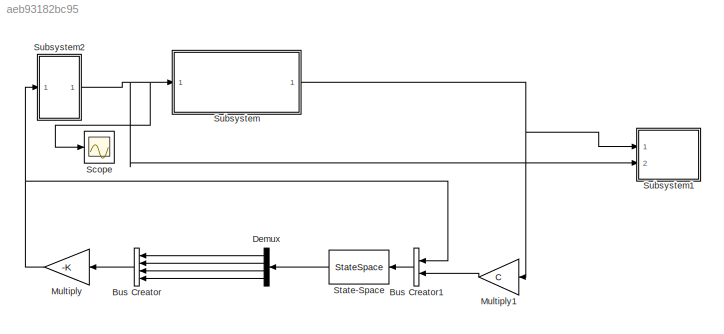
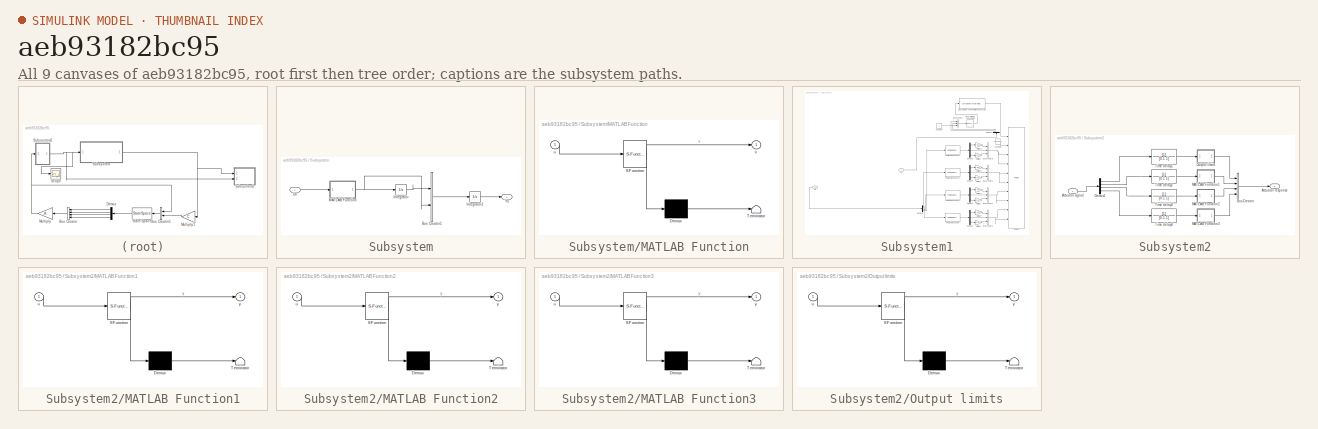
[diagram: thumbnail index - all 9 canvases of the model, root first then tree order]
MODEL slx_aeb93182bc95
KIND model
CONFIG AbsTol = auto
CONFIG EnableMultiTasking = off
CONFIG FixedStep = auto
CONFIG MaxStep = auto
CONFIG MinStep = auto
CONFIG RelTol = 1e-3
CONFIG SampleTimeConstraint = Unconstrained
CONFIG Solver = VariableStepAuto
CONFIG SolverName = VariableStepAuto
CONFIG StartTime = 0.0
CONFIG StopTime = 10.0
BLOCK [BusCreator] Bus Creator
  DisplayOption = bar
  InheritFromInputs = on
  Inputs = 4
  Ports = [4, 1]
BLOCK [BusCreator] Bus Creator1
  DisplayOption = bar
  InheritFromInputs = on
  Inputs = 2
  Ports = [2, 1]
BLOCK [Demux] Demux
  DisplayOption = bar
  Ports = [1, 4]
BLOCK [Gain] Multiply
  Gain = -K
  Multiplication = Matrix(K*u) (u vector)
  OutDataTypeStr = Inherit: Inherit via internal rule
  ParamDataTypeStr = Inherit: Inherit via internal rule
  SaturateOnIntegerOverflow = off
BLOCK [Gain] Multiply1
  Gain = C
  Multiplication = Matrix(K*u) (u vector)
  OutDataTypeStr = Inherit: Inherit via internal rule
  ParamDataTypeStr = Inherit: Inherit via internal rule
  SaturateOnIntegerOverflow = off
BLOCK [Scope] Scope
  Floating = off
  NumInputPorts = 1
  Ports = [1]
  ScopeSpecificationString = Simulink.scopes.TimeScopeBlockCfg('CurrentConfiguration', extmgr.ConfigurationSet(extmgr.Configuration('Core','General UI',true),extmgr.Configuration('Core','Source UI',true),extmgr.Configuration('Sources','WiredSimulink',true),extmgr.Configuration('Visuals','Time Domain',true,'SerializedDisplays',{struct('MinYLimReal','-0.20907','MaxYLimReal','2.23261','YLabelReal','','MinYLimMag','0.00000','MaxY...<+1467ch>
BLOCK [StateSpace] State-Space
  A = sysKF.a
  B = sysKF.b
  C = sysKF.c
  D = sysKF.d
  InitialCondition = [-5 0 0 0]
  Ports = [1, 1]
BLOCK [SubSystem] Subsystem
  Ports = [1, 1]
  RequestExecContextInheritance = off
BLOCK [BusCreator] Subsystem/Bus Creator1
  DisplayOption = bar
  InheritFromInputs = on
  Inputs = 2
  Ports = [2, 1]
BLOCK [Integrator] Subsystem/Integrator
  Ports = [1, 1]
BLOCK [Integrator] Subsystem/Integrator1
  Ports = [1, 1]
BLOCK [SubSystem] Subsystem/MATLAB Function
  ErrorFcn = Stateflow.Translate.translate
  PermitHierarchicalResolution = ExplicitOnly
  Ports = [1, 1]
  RequestExecContextInheritance = off
  SFBlockType = MATLAB Function
  TreatAsAtomicUnit = on
BLOCK [Demux] Subsystem/MATLAB Function/ Demux 
  Outputs = 1
  Ports = [1, 1]
BLOCK [S-Function] Subsystem/MATLAB Function/ SFunction 
  EnableBusSupport = on
  FunctionName = sf_sfun
  PortCounts = [1 2]
  Ports = [1, 2]
  SFcnIsStateOwnerBlock = off
  SFunctionDeploymentMode = off
  Tag = Stateflow S-Function 2
BLOCK [Terminator] Subsystem/MATLAB Function/ Terminator 
BLOCK [Inport] Subsystem/MATLAB Function/u
  IconDisplay = Port number
BLOCK [Outport] Subsystem/MATLAB Function/x
  IconDisplay = Port number
  VectorParamsAs1DForOutWhenUnconnected = off
BLOCK [Inport] Subsystem/U0
  IconDisplay = Port number
BLOCK [Outport] Subsystem/Y0
  IconDisplay = Port number
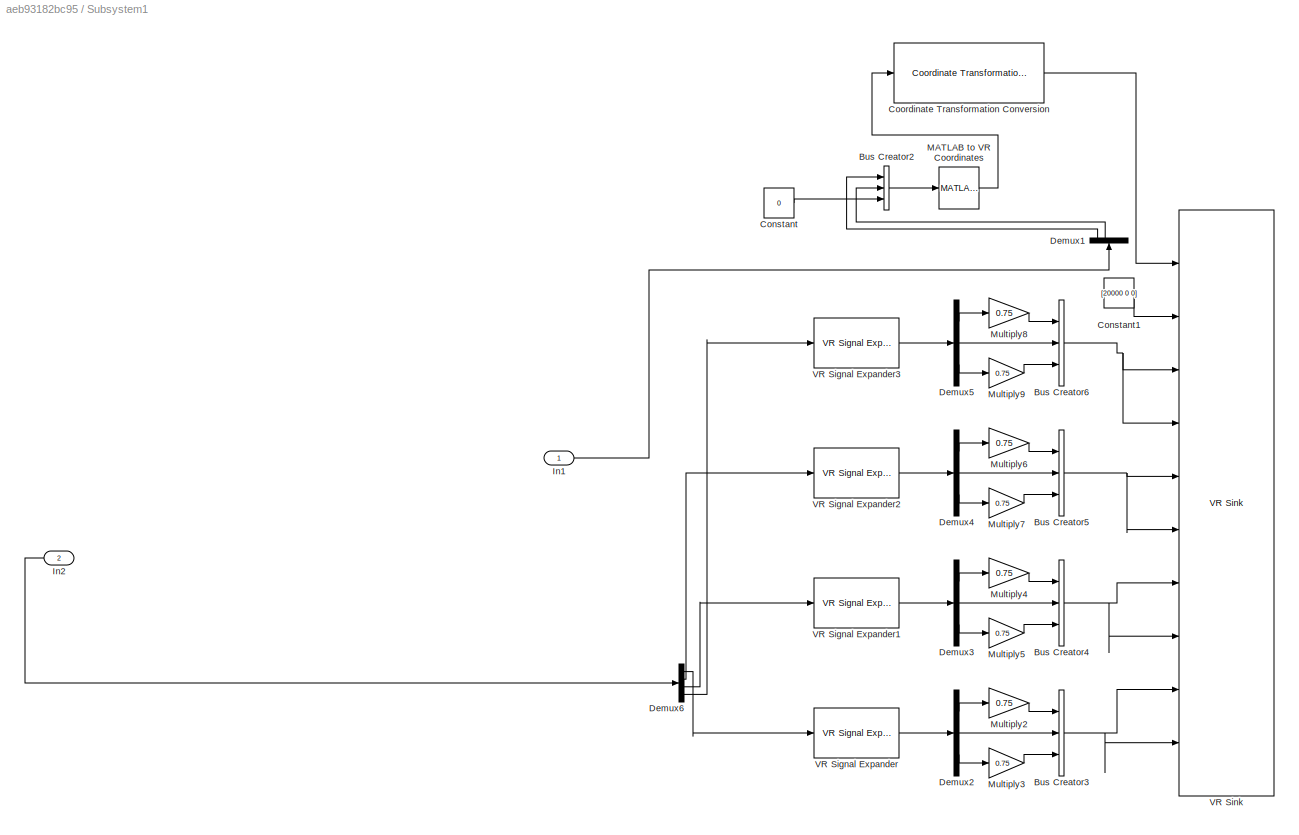
BLOCK [SubSystem] Subsystem1
  Ports = [2]
  RequestExecContextInheritance = off
BLOCK [BusCreator] Subsystem1/Bus Creator2
  DisplayOption = bar
  InheritFromInputs = on
  Inputs = 3
  Ports = [3, 1]
BLOCK [BusCreator] Subsystem1/Bus Creator3
  DisplayOption = bar
  InheritFromInputs = on
  Inputs = 3
  Ports = [3, 1]
BLOCK [BusCreator] Subsystem1/Bus Creator4
  DisplayOption = bar
  InheritFromInputs = on
  Inputs = 3
  Ports = [3, 1]
BLOCK [BusCreator] Subsystem1/Bus Creator5
  DisplayOption = bar
  InheritFromInputs = on
  Inputs = 3
  Ports = [3, 1]
BLOCK [BusCreator] Subsystem1/Bus Creator6
  DisplayOption = bar
  InheritFromInputs = on
  Inputs = 3
  Ports = [3, 1]
BLOCK [Constant] Subsystem1/Constant
  Value = 0
BLOCK [Constant] Subsystem1/Constant1
  Value = [20000 0 0]
BLOCK [Reference] Subsystem1/Coordinate Transformation Conversion  REF=robotcorelib/Coordinate Transformation Conversion
  Ports = [1, 1]
  SourceBlock = robotcorelib/Coordinate Transformation Conversion
  SourceProductBaseCode = RO
  SourceProductName = Robotics System Toolbox
  SourceType = robotics.slcore.internal.block.CoordinateTransformationConversion
BLOCK [Demux] Subsystem1/Demux1
  DisplayOption = bar
  Ports = [1, 4]
BLOCK [Demux] Subsystem1/Demux2
  DisplayOption = bar
  Outputs = 3
  Ports = [1, 3]
BLOCK [Demux] Subsystem1/Demux3
  DisplayOption = bar
  Outputs = 3
  Ports = [1, 3]
BLOCK [Demux] Subsystem1/Demux4
  DisplayOption = bar
  Outputs = 3
  Ports = [1, 3]
BLOCK [Demux] Subsystem1/Demux5
  DisplayOption = bar
  Outputs = 3
  Ports = [1, 3]
BLOCK [Demux] Subsystem1/Demux6
  DisplayOption = bar
  Ports = [1, 4]
BLOCK [Inport] Subsystem1/In1
  IconDisplay = Port number
BLOCK [Inport] Subsystem1/In2
  IconDisplay = Port number
  Port = 2
BLOCK [Reference] Subsystem1/MATLAB to VR Coordinates  REF=vrlib/Utilities/MATLAB to
VR Coordinates
  Ports = [1, 1]
  SourceBlock = vrlib/Utilities/MATLAB to\nVR Coordinates
  SourceProductBaseCode = SL
  SourceProductName = Simulink
  SourceType = MATLAB to VR Coordinates
BLOCK [Gain] Subsystem1/Multiply2
  Gain = 0.75
  OutDataTypeStr = Inherit: Inherit via internal rule
  ParamDataTypeStr = Inherit: Inherit via internal rule
  SaturateOnIntegerOverflow = off
BLOCK [Gain] Subsystem1/Multiply3
  Gain = 0.75
  OutDataTypeStr = Inherit: Inherit via internal rule
  ParamDataTypeStr = Inherit: Inherit via internal rule
  SaturateOnIntegerOverflow = off
BLOCK [Gain] Subsystem1/Multiply4
  Gain = 0.75
  OutDataTypeStr = Inherit: Inherit via internal rule
  ParamDataTypeStr = Inherit: Inherit via internal rule
  SaturateOnIntegerOverflow = off
BLOCK [Gain] Subsystem1/Multiply5
  Gain = 0.75
  OutDataTypeStr = Inherit: Inherit via internal rule
  ParamDataTypeStr = Inherit: Inherit via internal rule
  SaturateOnIntegerOverflow = off
BLOCK [Gain] Subsystem1/Multiply6
  Gain = 0.75
  OutDataTypeStr = Inherit: Inherit via internal rule
  ParamDataTypeStr = Inherit: Inherit via internal rule
  SaturateOnIntegerOverflow = off
BLOCK [Gain] Subsystem1/Multiply7
  Gain = 0.75
  OutDataTypeStr = Inherit: Inherit via internal rule
  ParamDataTypeStr = Inherit: Inherit via internal rule
  SaturateOnIntegerOverflow = off
BLOCK [Gain] Subsystem1/Multiply8
  Gain = 0.75
  OutDataTypeStr = Inherit: Inherit via internal rule
  ParamDataTypeStr = Inherit: Inherit via internal rule
  SaturateOnIntegerOverflow = off
BLOCK [Gain] Subsystem1/Multiply9
  Gain = 0.75
  OutDataTypeStr = Inherit: Inherit via internal rule
  ParamDataTypeStr = Inherit: Inherit via internal rule
  SaturateOnIntegerOverflow = off
BLOCK [Reference] Subsystem1/VR Signal Expander  REF=vrlib/VR Signal Expander
  Ports = [1, 1]
  SourceBlock = vrlib/VR Signal Expander
  SourceProductBaseCode = SL
  SourceProductName = Simulink
  SourceType = VR Signal Expander
BLOCK [Reference] Subsystem1/VR Signal Expander1  REF=vrlib/VR Signal Expander
  Ports = [1, 1]
  SourceBlock = vrlib/VR Signal Expander
  SourceProductBaseCode = SL
  SourceProductName = Simulink
  SourceType = VR Signal Expander
BLOCK [Reference] Subsystem1/VR Signal Expander2  REF=vrlib/VR Signal Expander
  Ports = [1, 1]
  SourceBlock = vrlib/VR Signal Expander
  SourceProductBaseCode = SL
  SourceProductName = Simulink
  SourceType = VR Signal Expander
BLOCK [Reference] Subsystem1/VR Signal Expander3  REF=vrlib/VR Signal Expander
  Ports = [1, 1]
  SourceBlock = vrlib/VR Signal Expander
  SourceProductBaseCode = SL
  SourceProductName = Simulink
  SourceType = VR Signal Expander
BLOCK [Reference] Subsystem1/VR Sink  REF=vrlib/VR Sink
  InstantiateOnLoad = on
  Ports = [10, 1]
  SourceBlock = vrlib/VR Sink
  SourceProductBaseCode = SL
  SourceProductName = Simulink
  SourceType = Virtual Reality Sink
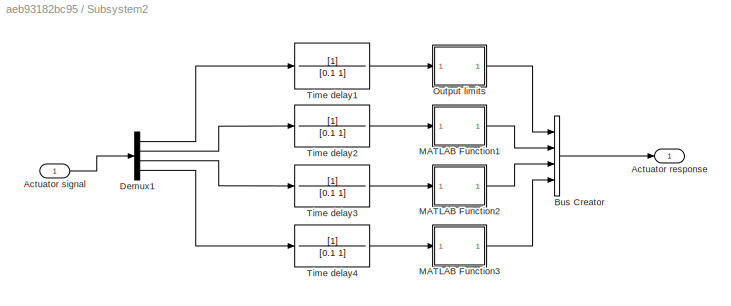
BLOCK [SubSystem] Subsystem2
  Ports = [1, 1]
  RequestExecContextInheritance = off
BLOCK [Outport] Subsystem2/Actuator response
  IconDisplay = Port number
BLOCK [Inport] Subsystem2/Actuator signal
  IconDisplay = Port number
BLOCK [BusCreator] Subsystem2/Bus Creator
  DisplayOption = bar
  InheritFromInputs = on
  Inputs = 4
  Ports = [4, 1]
BLOCK [Demux] Subsystem2/Demux1
  DisplayOption = bar
  Ports = [1, 4]
BLOCK [SubSystem] Subsystem2/MATLAB Function1
  ErrorFcn = Stateflow.Translate.translate
  PermitHierarchicalResolution = ExplicitOnly
  Ports = [1, 1]
  RequestExecContextInheritance = off
  SFBlockType = MATLAB Function
  TreatAsAtomicUnit = on
BLOCK [Demux] Subsystem2/MATLAB Function1/ Demux 
  Outputs = 1
  Ports = [1, 1]
BLOCK [S-Function] Subsystem2/MATLAB Function1/ SFunction 
  EnableBusSupport = on
  FunctionName = sf_sfun
  PortCounts = [1 2]
  Ports = [1, 2]
  SFcnIsStateOwnerBlock = off
  SFunctionDeploymentMode = off
  Tag = Stateflow S-Function 3
BLOCK [Terminator] Subsystem2/MATLAB Function1/ Terminator 
BLOCK [Inport] Subsystem2/MATLAB Function1/u
  IconDisplay = Port number
BLOCK [Outport] Subsystem2/MATLAB Function1/y
  IconDisplay = Port number
BLOCK [SubSystem] Subsystem2/MATLAB Function2
  ErrorFcn = Stateflow.Translate.translate
  PermitHierarchicalResolution = ExplicitOnly
  Ports = [1, 1]
  RequestExecContextInheritance = off
  SFBlockType = MATLAB Function
  TreatAsAtomicUnit = on
BLOCK [Demux] Subsystem2/MATLAB Function2/ Demux 
  Outputs = 1
  Ports = [1, 1]
BLOCK [S-Function] Subsystem2/MATLAB Function2/ SFunction 
  EnableBusSupport = on
  FunctionName = sf_sfun
  PortCounts = [1 2]
  Ports = [1, 2]
  SFcnIsStateOwnerBlock = off
  SFunctionDeploymentMode = off
  Tag = Stateflow S-Function 4
BLOCK [Terminator] Subsystem2/MATLAB Function2/ Terminator 
BLOCK [Inport] Subsystem2/MATLAB Function2/u
  IconDisplay = Port number
BLOCK [Outport] Subsystem2/MATLAB Function2/y
  IconDisplay = Port number
BLOCK [SubSystem] Subsystem2/MATLAB Function3
  ErrorFcn = Stateflow.Translate.translate
  PermitHierarchicalResolution = ExplicitOnly
  Ports = [1, 1]
  RequestExecContextInheritance = off
  SFBlockType = MATLAB Function
  TreatAsAtomicUnit = on
BLOCK [Demux] Subsystem2/MATLAB Function3/ Demux 
  Outputs = 1
  Ports = [1, 1]
BLOCK [S-Function] Subsystem2/MATLAB Function3/ SFunction 
  EnableBusSupport = on
  FunctionName = sf_sfun
  PortCounts = [1 2]
  Ports = [1, 2]
  SFcnIsStateOwnerBlock = off
  SFunctionDeploymentMode = off
  Tag = Stateflow S-Function 5
BLOCK [Terminator] Subsystem2/MATLAB Function3/ Terminator 
BLOCK [Inport] Subsystem2/MATLAB Function3/u
  IconDisplay = Port number
BLOCK [Outport] Subsystem2/MATLAB Function3/y
  IconDisplay = Port number
BLOCK [SubSystem] Subsystem2/Output limits
  ErrorFcn = Stateflow.Translate.translate
  PermitHierarchicalResolution = ExplicitOnly
  Ports = [1, 1]
  RequestExecContextInheritance = off
  SFBlockType = MATLAB Function
  TreatAsAtomicUnit = on
BLOCK [Demux] Subsystem2/Output limits/ Demux 
  Outputs = 1
  Ports = [1, 1]
BLOCK [S-Function] Subsystem2/Output limits/ SFunction 
  EnableBusSupport = on
  FunctionName = sf_sfun
  PortCounts = [1 2]
  Ports = [1, 2]
  SFcnIsStateOwnerBlock = off
  SFunctionDeploymentMode = off
  Tag = Stateflow S-Function 1
BLOCK [Terminator] Subsystem2/Output limits/ Terminator 
BLOCK [Inport] Subsystem2/Output limits/u
  IconDisplay = Port number
BLOCK [Outport] Subsystem2/Output limits/y
  IconDisplay = Port number
BLOCK [TransferFcn] Subsystem2/Time delay1 
  Denominator = [0.1 1]
BLOCK [TransferFcn] Subsystem2/Time delay2
  Denominator = [0.1 1]
BLOCK [TransferFcn] Subsystem2/Time delay3
  Denominator = [0.1 1]
BLOCK [TransferFcn] Subsystem2/Time delay4
  Denominator = [0.1 1]
LINE Bus Creator1:1 -> State-Space:1
LINE Bus Creator:1 -> Multiply:1
LINE Demux:1 -> Bus Creator:1
LINE Demux:2 -> Bus Creator:2
LINE Demux:3 -> Bus Creator:3
LINE Demux:4 -> Bus Creator:4
LINE Multiply1:1 -> Bus Creator1:2
NET Multiply:1 -> Bus Creator1:1, Subsystem2:1
LINE State-Space:1 -> Demux:1
LINE Subsystem/Bus Creator1:1 -> Subsystem/Integrator1:1
LINE Subsystem/Integrator1:1 -> Subsystem/Y0:1
LINE Subsystem/Integrator:1 -> Subsystem/Bus Creator1:1
NET Subsystem/MATLAB Function:1 -> Subsystem/Bus Creator1:2, Subsystem/Integrator:1
LINE Subsystem/U0:1 -> Subsystem/MATLAB Function:1
LINE Subsystem1/Bus Creator2:1 -> Subsystem1/MATLAB to VR Coordinates:1
NET Subsystem1/Bus Creator3:1 -> Subsystem1/VR Sink:10, Subsystem1/VR Sink:9
NET Subsystem1/Bus Creator4:1 -> Subsystem1/VR Sink:7, Subsystem1/VR Sink:8
NET Subsystem1/Bus Creator5:1 -> Subsystem1/VR Sink:5, Subsystem1/VR Sink:6
NET Subsystem1/Bus Creator6:1 -> Subsystem1/VR Sink:3, Subsystem1/VR Sink:4
LINE Subsystem1/Constant1:1 -> Subsystem1/VR Sink:2
LINE Subsystem1/Constant:1 -> Subsystem1/Bus Creator2:3
LINE Subsystem1/Coordinate Transformation Conversion:1 -> Subsystem1/VR Sink:1
LINE Subsystem1/Demux1:1 -> Subsystem1/Bus Creator2:1
LINE Subsystem1/Demux1:2 -> Subsystem1/Bus Creator2:2
LINE Subsystem1/Demux2:1 -> Subsystem1/Multiply2:1
LINE Subsystem1/Demux2:2 -> Subsystem1/Bus Creator3:2
LINE Subsystem1/Demux2:3 -> Subsystem1/Multiply3:1
LINE Subsystem1/Demux3:1 -> Subsystem1/Multiply4:1
LINE Subsystem1/Demux3:2 -> Subsystem1/Bus Creator4:2
LINE Subsystem1/Demux3:3 -> Subsystem1/Multiply5:1
LINE Subsystem1/Demux4:1 -> Subsystem1/Multiply6:1
LINE Subsystem1/Demux4:2 -> Subsystem1/Bus Creator5:2
LINE Subsystem1/Demux4:3 -> Subsystem1/Multiply7:1
LINE Subsystem1/Demux5:1 -> Subsystem1/Multiply8:1
LINE Subsystem1/Demux5:2 -> Subsystem1/Bus Creator6:2
LINE Subsystem1/Demux5:3 -> Subsystem1/Multiply9:1
LINE Subsystem1/Demux6:1 -> Subsystem1/VR Signal Expander:1
LINE Subsystem1/Demux6:2 -> Subsystem1/VR Signal Expander2:1
LINE Subsystem1/Demux6:3 -> Subsystem1/VR Signal Expander1:1
LINE Subsystem1/Demux6:4 -> Subsystem1/VR Signal Expander3:1
LINE Subsystem1/In1:1 -> Subsystem1/Demux1:1
LINE Subsystem1/In2:1 -> Subsystem1/Demux6:1
LINE Subsystem1/MATLAB to VR Coordinates:1 -> Subsystem1/Coordinate Transformation Conversion:1
LINE Subsystem1/Multiply2:1 -> Subsystem1/Bus Creator3:1
LINE Subsystem1/Multiply3:1 -> Subsystem1/Bus Creator3:3
LINE Subsystem1/Multiply4:1 -> Subsystem1/Bus Creator4:1
LINE Subsystem1/Multiply5:1 -> Subsystem1/Bus Creator4:3
LINE Subsystem1/Multiply6:1 -> Subsystem1/Bus Creator5:1
LINE Subsystem1/Multiply7:1 -> Subsystem1/Bus Creator5:3
LINE Subsystem1/Multiply8:1 -> Subsystem1/Bus Creator6:1
LINE Subsystem1/Multiply9:1 -> Subsystem1/Bus Creator6:3
LINE Subsystem1/VR Signal Expander1:1 -> Subsystem1/Demux3:1
LINE Subsystem1/VR Signal Expander2:1 -> Subsystem1/Demux4:1
LINE Subsystem1/VR Signal Expander3:1 -> Subsystem1/Demux5:1
LINE Subsystem1/VR Signal Expander:1 -> Subsystem1/Demux2:1
LINE Subsystem2/Actuator signal:1 -> Subsystem2/Demux1:1
LINE Subsystem2/Bus Creator:1 -> Subsystem2/Actuator response:1
LINE Subsystem2/Demux1:1 -> Subsystem2/Time delay1 :1
LINE Subsystem2/Demux1:2 -> Subsystem2/Time delay2:1
LINE Subsystem2/Demux1:3 -> Subsystem2/Time delay3:1
LINE Subsystem2/Demux1:4 -> Subsystem2/Time delay4:1
LINE Subsystem2/MATLAB Function1:1 -> Subsystem2/Bus Creator:2
LINE Subsystem2/MATLAB Function2:1 -> Subsystem2/Bus Creator:3
LINE Subsystem2/MATLAB Function3:1 -> Subsystem2/Bus Creator:4
LINE Subsystem2/Output limits:1 -> Subsystem2/Bus Creator:1
LINE Subsystem2/Time delay1 :1 -> Subsystem2/Output limits:1
LINE Subsystem2/Time delay2:1 -> Subsystem2/MATLAB Function1:1
LINE Subsystem2/Time delay3:1 -> Subsystem2/MATLAB Function2:1
LINE Subsystem2/Time delay4:1 -> Subsystem2/MATLAB Function3:1
NET Subsystem2:1 -> Scope:1, Subsystem1:2, Subsystem:1
NET Subsystem:1 -> Multiply1:1, Subsystem1:1
note: NET lines group one-source signal fan-out (src -> all destinations, sorted); 1:1 wires keep LINE
CHART Subsystem2/Output limits states=1 transitions=1
  STATE_LABEL 'eML_blk_kernel()'
  STATE_LABEL 'SCRIPT:\nfunction y = fcn(u)\n\nif u < 0;\n    y = 0;\nelse if u > 2\n    y = 2;\n    else\n    y = u;\n        \nend\nend\n'
CHART Subsystem/MATLAB Function states=1 transitions=1
  STATE_LABEL 'eML_blk_kernel()'
  STATE_LABEL 'SCRIPT:\nfunction x = fcn(u)\n\nx = [0 0];\n    \n    \nd = 1;\nIx = 1.5;\nIy = Ix;\n\nF1 = u(1);\nF2 = u(2);\nF3 = u(3);\nF4 = u(4);\n\ntheta_2dot = d*(F2-F4)/Ix\nphi_2dot = d*(F1-F3)/Iy\n\n\n\nx(1) = theta_2dot;\nx(2) = phi_2dot;\n\n\n\nend'
CHART Subsystem2/MATLAB Function1 states=1 transitions=1
  STATE_LABEL 'eML_blk_kernel()'
  STATE_LABEL 'SCRIPT:\nfunction y = fcn(u)\n\nif u < 0;\n    y = 0;\nelse if u > 2\n    y = 2;\n    else\n    y = u;\n        \nend\nend\n'
CHART Subsystem2/MATLAB Function2 states=1 transitions=1
  STATE_LABEL 'eML_blk_kernel()'
  STATE_LABEL 'SCRIPT:\nfunction y = fcn(u)\n\nif u < 0;\n    y = 0;\nelse if u > 2\n    y = 2;\n    else\n    y = u;\n        \nend\nend\n\n'
CHART Subsystem2/MATLAB Function3 states=1 transitions=1
  STATE_LABEL 'eML_blk_kernel()'
  STATE_LABEL 'SCRIPT:\nfunction y = fcn(u)\n\nif u < 0;\n    y = 0;\nelse if u > 2\n    y = 2;\n    else\n    y = u;\n        \nend\nend\n'
